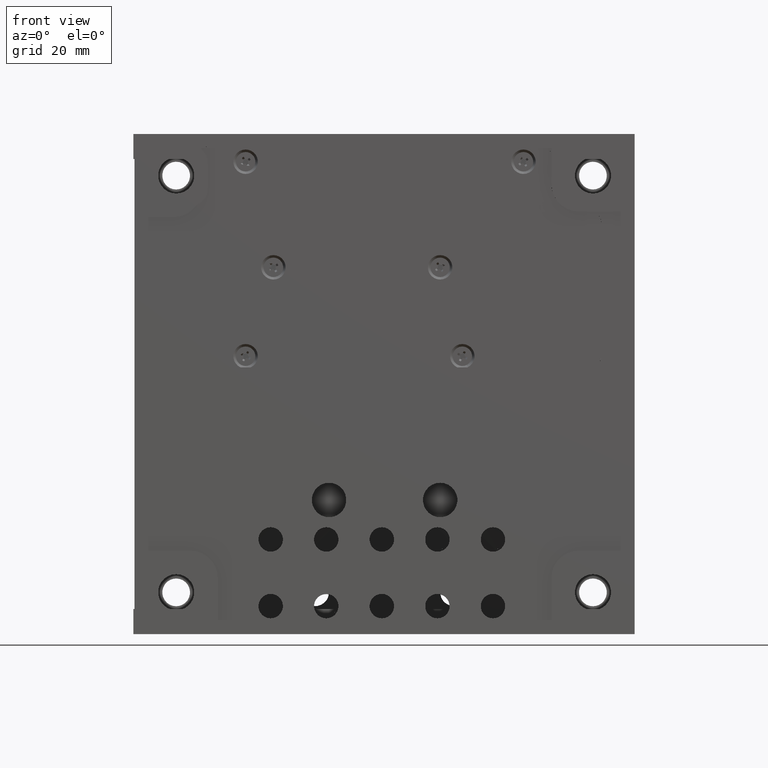
[diagram: clean part render]
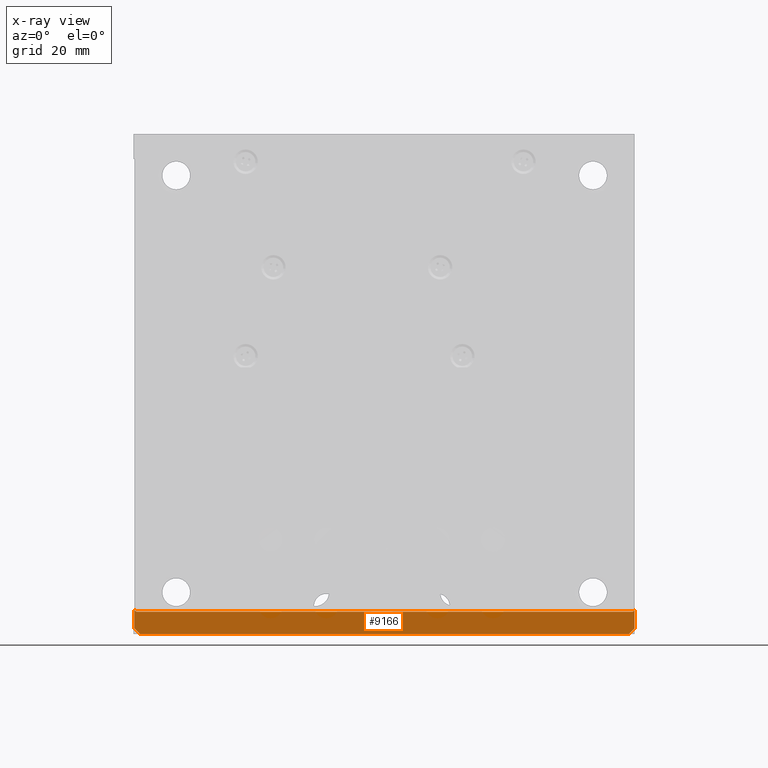
[diagram: x-ray — body ghosted, one internal face saturated and labeled with its STEP entity id]
A machine part, front view, then the same camera in x-ray: the body is ghosted and one INTERNAL B-rep face — a face not visible from any outside direction — is saturated and labeled: STEP entity #9166.
In plain terms, the highlighted planar face has unit normal (-0, 1, 0).
Its self-contained STEP definition (entity closure, byte-faithful):
#325 = CARTESIAN_POINT ( 'NONE',  ( 0.02880181551710667490, 27.49999999999989697, 4.331924472016159378 ) ) ;
#397 = VECTOR ( 'NONE', #5181, 1000.000000000000114 ) ;
#857 = VECTOR ( 'NONE', #20241, 1000.000000000000000 ) ;
#2249 = CARTESIAN_POINT ( 'NONE',  ( 0.02413527150980703320, 27.49999999999990052, 4.345728898092182213 ) ) ;
#3521 = CARTESIAN_POINT ( 'NONE',  ( 89.65427110190732662, 27.49999999999989697, 4.024135271509764245 ) ) ;
#3851 = CARTESIAN_POINT ( 'NONE',  ( 1.387778780781445676E-14, 27.49999999999989342, 3.999999999999976019 ) ) ;
#3946 = CARTESIAN_POINT ( 'NONE',  ( 89.91001295044202379, 27.49999999999990408, 4.210085295729041555 ) ) ;
#4624 = DIRECTION ( 'NONE',  ( -2.131963974351563742E-16, 0.000000000000000000, -1.000000000000000000 ) ) ;
#5018 = CARTESIAN_POINT ( 'NONE',  ( 0.4362408640742397870, 27.49999999999988631, 3.999999999999975131 ) ) ;
#5181 = DIRECTION ( 'NONE',  ( -0.7071067811865451302, 0.000000000000000000, 0.7071067811865500152 ) ) ;
#5619 = EDGE_CURVE ( 'NONE', #22444, #22323, #28450, .T. ) ;
#5623 = DIRECTION ( 'NONE',  ( 2.131963974351563742E-16, 0.000000000000000000, 1.000000000000000000 ) ) ;
#5829 = VECTOR ( 'NONE', #5623, 1000.000000000000000 ) ;
#6162 = CARTESIAN_POINT ( 'NONE',  ( 89.93569080259629800, 27.49999999999988987, 4.253959410810581154 ) ) ;
#6650 = CARTESIAN_POINT ( 'NONE',  ( 0.2539594108117793070, 27.49999999999989342, 4.064309197404024410 ) ) ;
#6797 = CARTESIAN_POINT ( 'NONE',  ( 0.3748917458139273684, 27.49999999999989342, 4.011701949822903401 ) ) ;
#7092 = CARTESIAN_POINT ( 'NONE',  ( 1.387735564814741809E-14, 27.49999999999990408, 4.468298805147518316 ) ) ;
#7102 = VERTEX_POINT ( 'NONE', #19538 ) ;
#7829 = EDGE_CURVE ( 'NONE', #18403, #7102, #17294, .T. ) ;
#8073 = CARTESIAN_POINT ( 'NONE',  ( 90.00000000000002842, 27.49999999999989342, 4.436240864076669510 ) ) ;
#8211 = CARTESIAN_POINT ( 'NONE',  ( 89.53170119485191947, 27.49999999999989697, 3.999999999999976019 ) ) ;
#8546 = DIRECTION ( 'NONE',  ( 0.000000000000000000, -2.168404344971006156E-16, 1.000000000000000000 ) ) ;
#8983 = DIRECTION ( 'NONE',  ( -8.714634252716276576E-18, 1.000000000000000000, 2.168404344971006156E-16 ) ) ;
#9166 = ADVANCED_FACE ( 'NONE', ( #13120 ), #28607, .T. ) ;
#9279 = CARTESIAN_POINT ( 'NONE',  ( 0.1707039990337538837, 27.49999999999988987, 4.122136915203189922 ) ) ;
#9322 = CARTESIAN_POINT ( 'NONE',  ( 4.145471342126268513E-14, 27.49999999999989342, 90.00000000000000000 ) ) ;
#9426 = CARTESIAN_POINT ( 'NONE',  ( 0.004388231183612671324, 27.49999999999990052, 4.421516989660554842 ) ) ;
#10161 = DIRECTION ( 'NONE',  ( 1.000000000000000000, 0.000000000000000000, -3.673940397442059375E-16 ) ) ;
#10279 = CARTESIAN_POINT ( 'NONE',  ( 89.66807552798491088, 27.49999999999989342, 4.028801815517596197 ) ) ;
#10314 = VERTEX_POINT ( 'NONE', #13578 ) ;
#10551 = CARTESIAN_POINT ( 'NONE',  ( 89.50000000000002842, 27.49999999999989342, 3.999999999999970690 ) ) ;
#10699 = CARTESIAN_POINT ( 'NONE',  ( 89.57848301033845928, 27.49999999999988631, 4.004388231183573232 ) ) ;
#11028 = EDGE_CURVE ( 'NONE', #22444, #23574, #23047, .T. ) ;
#11172 = VECTOR ( 'NONE', #11261, 1000.000000000000000 ) ;
#11261 = DIRECTION ( 'NONE',  ( 1.000000000000000000, 8.714634252716276576E-18, 1.889685077842313216E-33 ) ) ;
#11310 = CARTESIAN_POINT ( 'NONE',  ( 90.00000000000002842, 27.49999999999989342, 0.9999999999999870104 ) ) ;
#11331 = CARTESIAN_POINT ( 'NONE',  ( 0.5000000000000279776, 27.49999999999989342, 3.999999999999974243 ) ) ;
#11366 = ORIENTED_EDGE ( 'NONE', *, *, #11028, .T. ) ;
#11436 = ORIENTED_EDGE ( 'NONE', *, *, #17515, .F. ) ;
#12486 = CARTESIAN_POINT ( 'NONE',  ( 89.95904317561974040, 27.49999999999988987, 4.301217870069707239 ) ) ;
#12564 = AXIS2_PLACEMENT_3D ( 'NONE', #3851, #8983, #8546 ) ;
#13120 = FACE_OUTER_BOUND ( 'NONE', #15244, .T. ) ;
#13402 = CARTESIAN_POINT ( 'NONE',  ( 0.2100852957305493485, 27.49999999999988987, 4.089987049558313714 ) ) ;
#13578 = CARTESIAN_POINT ( 'NONE',  ( 90.00000000000002842, 27.49999999999989342, 4.499999999999976019 ) ) ;
#13597 = EDGE_CURVE ( 'NONE', #26836, #18403, #23229, .T. ) ;
#13613 = CARTESIAN_POINT ( 'NONE',  ( 90.00000000000002842, 27.49999999999989697, 0.9999999999999870104 ) ) ;
#14531 = ORIENTED_EDGE ( 'NONE', *, *, #5619, .F. ) ;
#15231 = CARTESIAN_POINT ( 'NONE',  ( 88.99999999999998579, 27.49999999999989697, -2.917424606926118860E-14 ) ) ;
#15244 = EDGE_LOOP ( 'NONE', ( #22794, #16830, #14531, #11366, #11436, #17798, #16320, #26003 ) ) ;
#16320 = ORIENTED_EDGE ( 'NONE', *, *, #7829, .T. ) ;
#16756 = LINE ( 'NONE', #21276, #5829 ) ;
#16830 = ORIENTED_EDGE ( 'NONE', *, *, #28030, .T. ) ;
#16863 = EDGE_CURVE ( 'NONE', #25060, #10314, #16756, .T. ) ;
#17156 = CARTESIAN_POINT ( 'NONE',  ( 89.62410986063804330, 27.49999999999989342, 4.015358809142568930 ) ) ;
#17294 = LINE ( 'NONE', #26933, #11172 ) ;
#17313 = CARTESIAN_POINT ( 'NONE',  ( 90.00000000000002842, 27.49999999999989342, 4.499999999999976019 ) ) ;
#17515 = EDGE_CURVE ( 'NONE', #26836, #23574, #22505, .T. ) ;
#17798 = ORIENTED_EDGE ( 'NONE', *, *, #13597, .T. ) ;
#17925 = CARTESIAN_POINT ( 'NONE',  ( 0.01535880914260952766, 27.49999999999990052, 4.375890139361187536 ) ) ;
#18071 = CARTESIAN_POINT ( 'NONE',  ( 0.06032198527559286955, 27.49999999999988987, 4.252065338030559971 ) ) ;
#18290 = CARTESIAN_POINT ( 'NONE',  ( 1.000000000000041078, 27.49999999999989697, 9.731130315665953183E-16 ) ) ;
#18403 = VERTEX_POINT ( 'NONE', #27701 ) ;
#19066 = CARTESIAN_POINT ( 'NONE',  ( 89.87786308479701347, 27.49999999999988987, 4.170703999032871145 ) ) ;
#19487 = CARTESIAN_POINT ( 'NONE',  ( 89.98829805017707884, 27.49999999999988987, 4.374891745816356980 ) ) ;
#19538 = CARTESIAN_POINT ( 'NONE',  ( 89.50000000000002842, 27.49999999999989342, 3.999999999999970690 ) ) ;
#20241 = DIRECTION ( 'NONE',  ( -0.7071067811865573427, 0.000000000000000000, -0.7071067811865378028 ) ) ;
#20467 = CARTESIAN_POINT ( 'NONE',  ( 2.196734146751497203E-14, 27.49999999999989342, 4.499999999999976019 ) ) ;
#20736 = CARTESIAN_POINT ( 'NONE',  ( 2.416640109339978756E-14, 27.49999999999989697, 1.000000000000014655 ) ) ;
#20997 = CARTESIAN_POINT ( 'NONE',  ( 1.000000000000063283, 27.49999999999989342, -2.775557561562891351E-14 ) ) ;
#21024 = EDGE_CURVE ( 'NONE', #7102, #10314, #24820, .T. ) ;
#21254 = CARTESIAN_POINT ( 'NONE',  ( 89.80493400218585975, 27.49999999999988987, 4.097931830154363020 ) ) ;
#21276 = CARTESIAN_POINT ( 'NONE',  ( 90.00000000000004263, 27.49999999999989342, 89.99999999999997158 ) ) ;
#21361 = VECTOR ( 'NONE', #10161, 1000.000000000000000 ) ;
#22323 = VERTEX_POINT ( 'NONE', #15231 ) ;
#22444 = VERTEX_POINT ( 'NONE', #18290 ) ;
#22452 = LINE ( 'NONE', #11310, #857 ) ;
#22505 = LINE ( 'NONE', #9322, #28300 ) ;
#22747 = CARTESIAN_POINT ( 'NONE',  ( 2.196734146751497203E-14, 27.49999999999989342, 4.499999999999976019 ) ) ;
#22794 = ORIENTED_EDGE ( 'NONE', *, *, #16863, .F. ) ;
#23047 = LINE ( 'NONE', #20997, #397 ) ;
#23229 = B_SPLINE_CURVE_WITH_KNOTS ( 'NONE', 3,
 ( #22747, #7092, #9426, #17925, #2249, #325, #18071, #24808, #9279, #13402, #6650, #26859, #24656, #6797, #5018, #11331 ),
 .UNSPECIFIED., .F., .F.,
 ( 4, 1, 2, 2, 2, 1, 2, 2, 4 ),
 ( 0.000000000000000000, 0.1249999999999947264, 0.1874999999999938105, 0.2499999999999928946, 0.4999999999999951150, 0.6249999999999961142, 0.6874999999999967804, 0.7499999999999973355, 1.000000000000000000 ),
 .UNSPECIFIED. ) ;
#23574 = VERTEX_POINT ( 'NONE', #20736 ) ;
#23628 = CARTESIAN_POINT ( 'NONE',  ( 90.00000000000002842, 27.49999999999989342, -3.014255511857300007E-14 ) ) ;
#24656 = CARTESIAN_POINT ( 'NONE',  ( 0.3012178700703815326, 27.49999999999988987, 4.040956824380224077 ) ) ;
#24808 = CARTESIAN_POINT ( 'NONE',  ( 0.09793183015274251058, 27.49999999999988276, 4.195065997813724579 ) ) ;
#24820 = B_SPLINE_CURVE_WITH_KNOTS ( 'NONE', 3,
 ( #10551, #8211, #10699, #17156, #3521, #10279, #26085, #21254, #19066, #3946, #6162, #27994, #12486, #19487, #8073, #17313 ),
 .UNSPECIFIED., .F., .F.,
 ( 4, 1, 2, 2, 2, 1, 2, 2, 4 ),
 ( 0.000000000000000000, 0.1250000000000272560, 0.1875000000000136002, 0.2499999999999999445, 0.4999999999999900080, 0.6249999999999850120, 0.6874999999999953371, 0.7500000000000056621, 1.000000000000000000 ),
 .UNSPECIFIED. ) ;
#25060 = VERTEX_POINT ( 'NONE', #13613 ) ;
#26003 = ORIENTED_EDGE ( 'NONE', *, *, #21024, .T. ) ;
#26085 = CARTESIAN_POINT ( 'NONE',  ( 89.74793466196518921, 27.49999999999989342, 4.060321985273411372 ) ) ;
#26836 = VERTEX_POINT ( 'NONE', #20467 ) ;
#26859 = CARTESIAN_POINT ( 'NONE',  ( 0.2842072249513625803, 27.49999999999989342, 4.048628854521292730 ) ) ;
#26933 = CARTESIAN_POINT ( 'NONE',  ( 1.387778780781445676E-14, 27.49999999999989342, 3.999999999999976019 ) ) ;
#27701 = CARTESIAN_POINT ( 'NONE',  ( 0.5000000000000279776, 27.49999999999989342, 3.999999999999974243 ) ) ;
#27994 = CARTESIAN_POINT ( 'NONE',  ( 89.95137114547890178, 27.49999999999989342, 4.284207224950580262 ) ) ;
#28030 = EDGE_CURVE ( 'NONE', #25060, #22323, #22452, .T. ) ;
#28300 = VECTOR ( 'NONE', #4624, 1000.000000000000000 ) ;
#28450 = LINE ( 'NONE', #23628, #21361 ) ;
#28607 = PLANE ( 'NONE',  #12564 ) ;